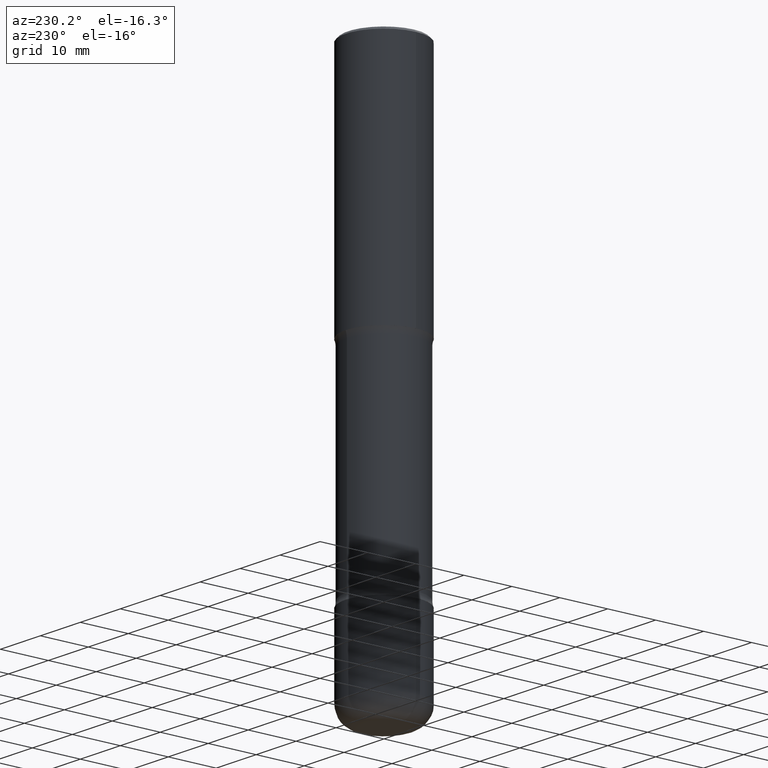
[diagram: clean part render]
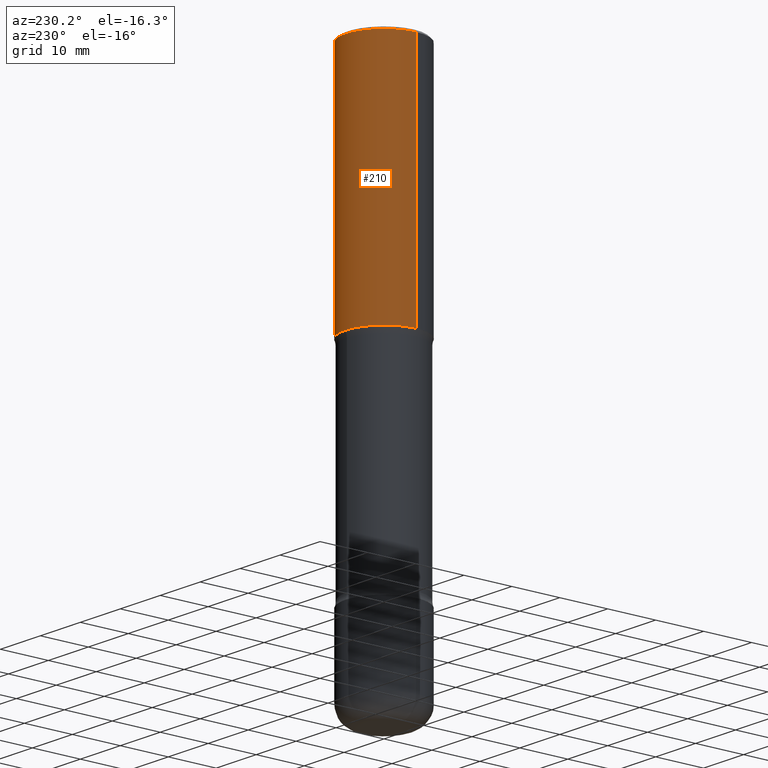
[diagram: same view with one face highlighted and labeled with its STEP entity id]
A machine part, auxiliary view. The second image highlights one B-rep face of the part: STEP entity #210.
In plain terms, the highlighted cylindrical surface (partial cylindrical patch) has radius 7.9997 mm, axis along (-0, 0, 1).
Its self-contained STEP definition (entity closure, byte-faithful):
#5 = FACE_OUTER_BOUND ( 'NONE', #384, .T. ) ;
#44 = DIRECTION ( 'NONE',  ( -2.445468806185136597E-29, 3.491481338843145583E-15, 1.000000000000000000 ) ) ;
#72 = LINE ( 'NONE', #155, #149 ) ;
#86 = CARTESIAN_POINT ( 'NONE',  ( 0.3149500000000000077, -2.199284095337289871E-15, 1.535751875536930130E-29 ) ) ;
#91 = CARTESIAN_POINT ( 'NONE',  ( 0.3149500000000001743, -9.072265110850023156E-15, -1.968500000000000139 ) ) ;
#98 = CARTESIAN_POINT ( 'NONE',  ( 4.890937612370289799E-31, -6.982962677686315028E-17, -0.02000000000000006981 ) ) ;
#114 = ORIENTED_EDGE ( 'NONE', *, *, #550, .T. ) ;
#149 = VECTOR ( 'NONE', #201, 39.37007874015748143 ) ;
#155 = CARTESIAN_POINT ( 'NONE',  ( -0.3149500000000000077, 2.237854346276435590E-15, -1.549218606675782676E-29 ) ) ;
#168 = CIRCLE ( 'NONE', #418, 0.3149500000000001743 ) ;
#175 = EDGE_CURVE ( 'NONE', #297, #333, #320, .T. ) ;
#177 = ORIENTED_EDGE ( 'NONE', *, *, #175, .F. ) ;
#188 = CARTESIAN_POINT ( 'NONE',  ( 0.000000000000000000, 0.000000000000000000, 0.000000000000000000 ) ) ;
#201 = DIRECTION ( 'NONE',  ( -2.445468806185136877E-29, 3.491481338843145188E-15, 1.000000000000000000 ) ) ;
#210 = ADVANCED_FACE ( 'NONE', ( #5 ), #526, .T. ) ;
#253 = VERTEX_POINT ( 'NONE', #91 ) ;
#269 = DIRECTION ( 'NONE',  ( -2.445468806185136877E-29, 3.491481338843145188E-15, 1.000000000000000000 ) ) ;
#279 = DIRECTION ( 'NONE',  ( 1.000000000000000000, -6.982962677686265922E-15, 0.000000000000000000 ) ) ;
#284 = CARTESIAN_POINT ( 'NONE',  ( 0.3149499999999998967, -2.230543471175006266E-15, -0.02000000000000006981 ) ) ;
#297 = VERTEX_POINT ( 'NONE', #284 ) ;
#320 = CIRCLE ( 'NONE', #428, 0.3149499999999998967 ) ;
#331 = VECTOR ( 'NONE', #269, 39.37007874015748143 ) ;
#333 = VERTEX_POINT ( 'NONE', #419 ) ;
#358 = DIRECTION ( 'NONE',  ( -2.445468806185136597E-29, 3.491481338843145583E-15, 1.000000000000000000 ) ) ;
#380 = ORIENTED_EDGE ( 'NONE', *, *, #470, .F. ) ;
#383 = LINE ( 'NONE', #86, #331 ) ;
#384 = EDGE_LOOP ( 'NONE', ( #114, #412, #177, #380 ) ) ;
#401 = EDGE_CURVE ( 'NONE', #503, #333, #72, .T. ) ;
#411 = DIRECTION ( 'NONE',  ( 1.000000000000000000, -6.982962677686266711E-15, 4.876176775795936353E-29 ) ) ;
#412 = ORIENTED_EDGE ( 'NONE', *, *, #401, .T. ) ;
#418 = AXIS2_PLACEMENT_3D ( 'NONE', #506, #358, #465 ) ;
#419 = CARTESIAN_POINT ( 'NONE',  ( -0.3149499999999998967, 2.129454468560425784E-15, -0.02000000000000006981 ) ) ;
#428 = AXIS2_PLACEMENT_3D ( 'NONE', #98, #446, #279 ) ;
#446 = DIRECTION ( 'NONE',  ( -2.445468806185136597E-29, 3.491481338843145583E-15, 1.000000000000000000 ) ) ;
#465 = DIRECTION ( 'NONE',  ( 1.000000000000000000, -6.982962677686269866E-15, 0.000000000000000000 ) ) ;
#470 = EDGE_CURVE ( 'NONE', #253, #297, #383, .T. ) ;
#503 = VERTEX_POINT ( 'NONE', #509 ) ;
#506 = CARTESIAN_POINT ( 'NONE',  ( 4.813905344975441835E-29, -6.872981015512731707E-15, -1.968500000000000139 ) ) ;
#509 = CARTESIAN_POINT ( 'NONE',  ( -0.3149500000000001743, -1.233550974868359743E-15, -1.968500000000000139 ) ) ;
#526 = CYLINDRICAL_SURFACE ( 'NONE', #543, 0.3149500000000000077 ) ;
#543 = AXIS2_PLACEMENT_3D ( 'NONE', #188, #44, #411 ) ;
#550 = EDGE_CURVE ( 'NONE', #253, #503, #168, .T. ) ;